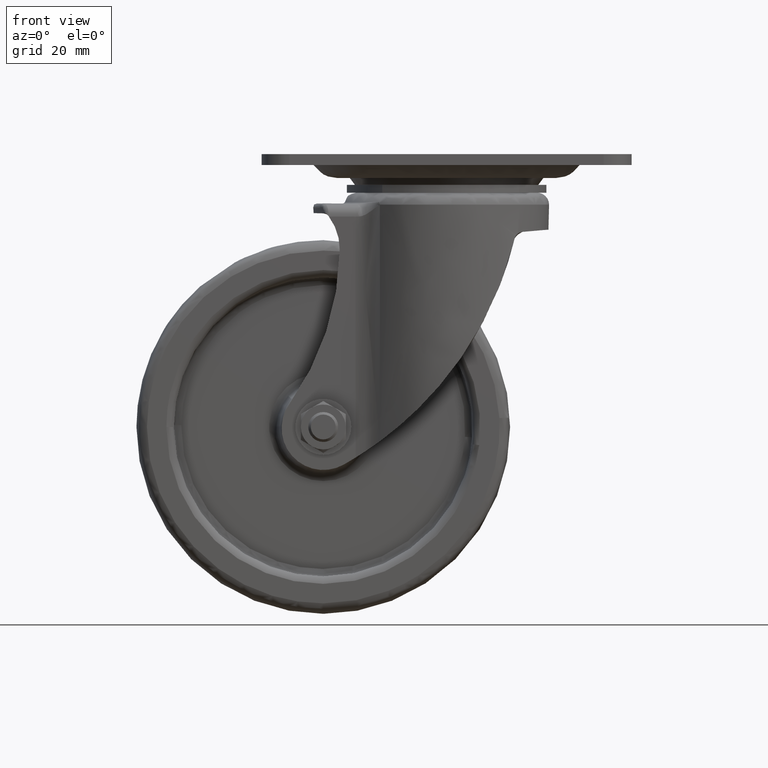
[diagram: clean part render]
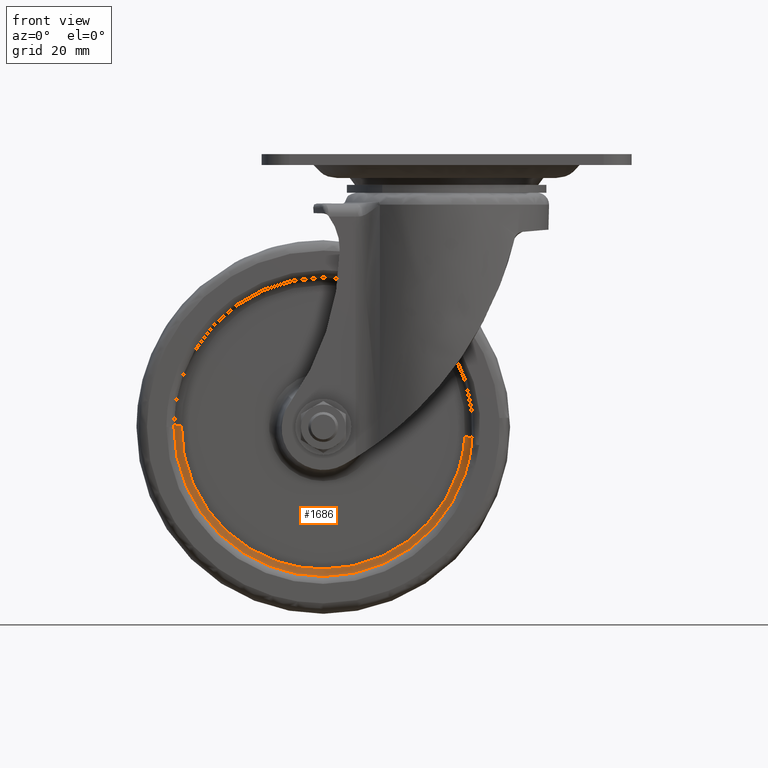
[diagram: same view with one face highlighted and labeled with its STEP entity id]
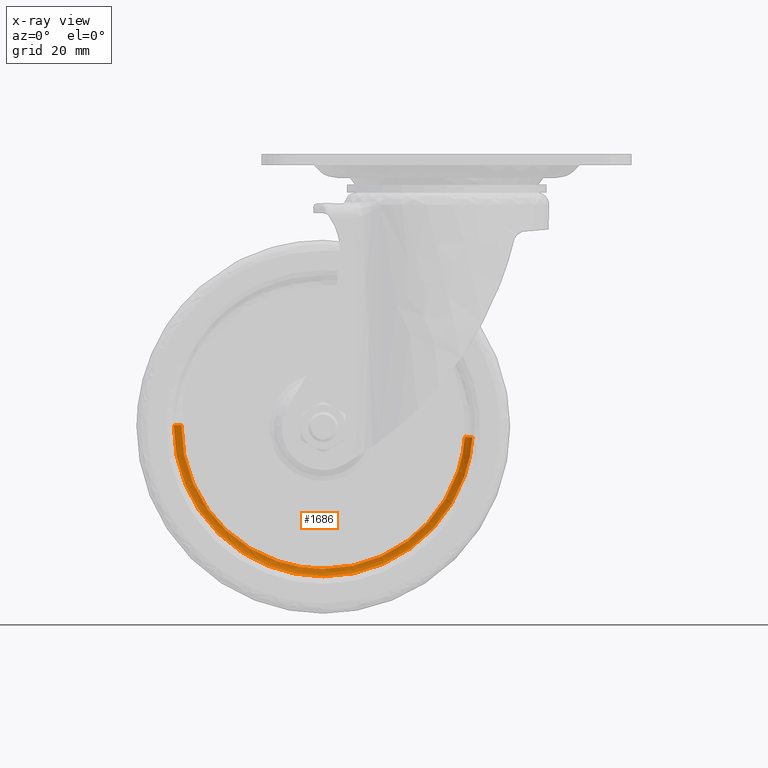
[diagram: x-ray of the same camera — body ghosted, the highlighted face saturated]
A machine part, front view. The second image highlights one B-rep face of the part: STEP entity #1686.
The next image is the same camera in x-ray: the body ghosted, the highlighted face saturated — about 0% of this face is hidden behind the body in this view.
In plain terms, the highlighted face is a freeform B-spline surface patch.
Its self-contained STEP definition (entity closure, byte-faithful):
#170=CARTESIAN_POINT('',(6.903039953612751,-6.999999998646823,-75.789124063081317));
#171=VERTEX_POINT('',#170);
#183=CARTESIAN_POINT('',(-32.999587000000091,-7.0,-112.999793999999990));
#184=VERTEX_POINT('',#183);
#185=CARTESIAN_POINT('',(-32.999587000000091,-7.0,-112.999793999999990));
#186=CARTESIAN_POINT('',(-29.637844998667951,-7.000000000000046,-113.000822514775900));
#187=CARTESIAN_POINT('',(-24.165996505247801,-6.999999999974757,-112.305545042309300));
#188=CARTESIAN_POINT('',(-16.453386298224800,-6.999999999878283,-109.652828651835190));
#189=CARTESIAN_POINT('',(-9.871057317697845,-6.999999999744381,-105.970409552997200));
#190=CARTESIAN_POINT('',(-4.458805366803701,-6.999999999574330,-101.295534969254400));
#191=CARTESIAN_POINT('',(-0.613313606935231,-6.999999999405387,-96.648018246850341));
#192=CARTESIAN_POINT('',(1.915052068829843,-6.999999999261332,-92.687540640267201));
#193=CARTESIAN_POINT('',(3.917674281146802,-6.999999999113140,-88.612394756580926));
#194=CARTESIAN_POINT('',(5.906198075506705,-6.999999998912176,-83.085841618470241));
#195=CARTESIAN_POINT('',(6.701889006704558,-6.999999998751753,-78.674727967112517));
#196=CARTESIAN_POINT('',(6.903039953612751,-6.999999998646823,-75.789124063081317));
#197=B_SPLINE_CURVE_WITH_KNOTS('',3,(#185,#186,#187,#188,#189,#190,#191,#192,#193,#194,#195,#196),.UNSPECIFIED.,.F.,.U.,(4,1,1,1,1,1,1,1,1,4),(0.000000150106935,10.084876597559610,16.417284987029682,24.391454580585702,32.599992084366058,37.759713308267457,42.450395213268720,46.671993708223560,51.362681242548170,60.040343425258087),.UNSPECIFIED.);
#198=EDGE_CURVE('',#184,#171,#197,.T.);
#200=CARTESIAN_POINT('',(-72.996428768152128,-6.999999998654348,-72.497152404618475));
#201=VERTEX_POINT('',#200);
#202=CARTESIAN_POINT('',(-72.996428768152128,-6.999999998654348,-72.497152404618475));
#203=CARTESIAN_POINT('',(-73.029976759227822,-6.999999998803219,-75.135895078196285));
#204=CARTESIAN_POINT('',(-72.664585948579003,-6.999999999031097,-79.346437937305851));
#205=CARTESIAN_POINT('',(-70.947887571022861,-6.999999999378212,-86.240402541668956));
#206=CARTESIAN_POINT('',(-68.295957111485805,-6.999999999658029,-92.323510997291265));
#207=CARTESIAN_POINT('',(-64.606437895432421,-6.999999999875412,-97.718596372177174));
#208=CARTESIAN_POINT('',(-61.113864610213710,-7.000000000010727,-101.575758349774700));
#209=CARTESIAN_POINT('',(-57.265241522764711,-7.000000000111266,-104.955168780755600));
#210=CARTESIAN_POINT('',(-52.712381994778269,-7.000000000174852,-107.967359062451490));
#211=CARTESIAN_POINT('',(-47.400450224289919,-7.000000000191508,-110.462445728878000));
#212=CARTESIAN_POINT('',(-40.916178694456327,-7.000000000152763,-112.446312346841590));
#213=CARTESIAN_POINT('',(-35.968431794094712,-7.000000000068459,-113.000332614743700));
#214=CARTESIAN_POINT('',(-32.999587000000091,-7.0,-112.999793999999990));
#215=B_SPLINE_CURVE_WITH_KNOTS('',3,(#202,#203,#204,#205,#206,#207,#208,#209,#210,#211,#212,#213,#214),.UNSPECIFIED.,.F.,.U.,(4,1,1,1,1,1,1,1,1,1,4),(0.000000167739209,7.916776845738333,12.617435566406201,21.276492965204209,27.708966413217279,32.162047183503233,36.862683051836143,43.047713822997721,48.490562444631308,54.428207781991183,63.334608845876083),.UNSPECIFIED.);
#216=EDGE_CURVE('',#201,#184,#215,.T.);
#1558=CARTESIAN_POINT('',(4.907908623832196,-5.000000000000001,-75.649657561604528));
#1559=VERTEX_POINT('',#1558);
#1579=CARTESIAN_POINT('',(4.907908623832196,-5.000000000000001,-75.649657561604528));
#1580=CARTESIAN_POINT('',(5.185462751002584,-4.999648313686596,-75.669059544066229));
#1581=CARTESIAN_POINT('',(5.723718986579237,-5.114488148839136,-75.706685495263599));
#1582=CARTESIAN_POINT('',(6.390647307250423,-5.584876551944788,-75.753306065157375));
#1583=CARTESIAN_POINT('',(6.808750624362530,-6.247388062636768,-75.782532916562275));
#1584=CARTESIAN_POINT('',(6.903233068452067,-6.754545023404780,-75.789137562461036));
#1585=CARTESIAN_POINT('',(6.903039953612751,-6.999999998646823,-75.789124063081317));
#1586=B_SPLINE_CURVE_WITH_KNOTS('',3,(#1579,#1580,#1581,#1582,#1583,#1584,#1585),.UNSPECIFIED.,.F.,.U.,(4,1,1,1,4),(0.000000633137514,0.834509909695350,1.619829739553427,2.405343562906502,3.141671481917281),.UNSPECIFIED.);
#1587=EDGE_CURVE('',#1559,#171,#1586,.T.);
#1593=CARTESIAN_POINT('',(-70.996586693972660,-5.0,-72.522284483843066));
#1594=VERTEX_POINT('',#1593);
#1595=CARTESIAN_POINT('',(-70.996586693972660,-5.0,-72.522284483843066));
#1596=CARTESIAN_POINT('',(-71.340396789513562,-4.999108391867333,-72.517963811398602));
#1597=CARTESIAN_POINT('',(-71.879286291797030,-5.142773686596469,-72.511191569820014));
#1598=CARTESIAN_POINT('',(-72.492186643420155,-5.621119534242287,-72.503489231527041));
#1599=CARTESIAN_POINT('',(-72.888841437157296,-6.214828785561914,-72.498504458059799));
#1600=CARTESIAN_POINT('',(-72.996788426326546,-6.721771624296907,-72.497147884789356));
#1601=CARTESIAN_POINT('',(-72.996428768152128,-6.999999998654348,-72.497152404618475));
#1602=B_SPLINE_CURVE_WITH_KNOTS('',3,(#1595,#1596,#1597,#1598,#1599,#1600,#1601),.UNSPECIFIED.,.F.,.U.,(4,1,1,1,4),(0.000000633139220,1.030869583943434,1.619829740257464,2.307164076122060,3.141671483269469),.UNSPECIFIED.);
#1603=EDGE_CURVE('',#1594,#201,#1602,.T.);
#1623=CARTESIAN_POINT('',(-70.857520371161911,-5.004841483106208,-72.524032135199874));
#1624=CARTESIAN_POINT('',(-71.333282235962031,-5.004841483106206,-110.381965506361680));
#1625=CARTESIAN_POINT('',(-33.475348864800218,-5.004841483106208,-110.857727371161800));
#1626=CARTESIAN_POINT('',(2.275920741790824,-5.004841483106207,-111.307014724759430));
#1627=CARTESIAN_POINT('',(4.769169875879143,-5.004841483106208,-75.639959248246782));
#1628=CARTESIAN_POINT('',(-73.151491290363353,-4.844922134836300,-72.495203728968193));
#1629=CARTESIAN_POINT('',(-73.656081561395169,-4.844922134836300,-112.647108019331410));
#1630=CARTESIAN_POINT('',(-33.504177271031928,-4.844922134836300,-113.151698290363270));
#1631=CARTESIAN_POINT('',(4.413411664139344,-4.844922134836298,-113.628209848552630));
#1632=CARTESIAN_POINT('',(7.057737217319241,-4.844922134836299,-75.799937930706420));
#1633=CARTESIAN_POINT('',(-72.991587867278625,-7.139074420594227,-72.497213240422710));
#1634=CARTESIAN_POINT('',(-73.494168626855910,-7.139074420594228,-112.489214107701260));
#1635=CARTESIAN_POINT('',(-33.502167759577375,-7.139074420594227,-112.991794867278540));
#1636=CARTESIAN_POINT('',(4.264415827951926,-7.139074420594227,-113.466408736413270));
#1637=CARTESIAN_POINT('',(6.898210455757871,-7.139074420594226,-75.788786464603803));
#1645=(BOUNDED_SURFACE()B_SPLINE_SURFACE(2,2,((#1623,#1628,#1633),(#1624,#1629,#1634),(#1625,#1630,#1635),(#1626,#1631,#1636),(#1627,#1632,#1637)),.UNSPECIFIED.,.F.,.F.,.U.)B_SPLINE_SURFACE_WITH_KNOTS((3,2,3),(3,3),(0.0,66.266148679182407,129.881651411197510),(0.0,3.644751786009137),.UNSPECIFIED.)GEOMETRIC_REPRESENTATION_ITEM()RATIONAL_B_SPLINE_SURFACE(((0.910480433641590,0.597479238377734,0.910479837164790),(0.643806888765637,0.422481621075069,0.643806466992846),(0.910480433641590,0.597479238377734,0.910479837164790),(0.654473830560675,0.429481525767176,0.654473401799724),(0.889999905395117,0.584039421368889,0.889999322335585)))REPRESENTATION_ITEM('')SURFACE());
#1646=CARTESIAN_POINT('',(-32.999587000000091,-5.0,-110.999793999999990));
#1647=VERTEX_POINT('',#1646);
#1648=CARTESIAN_POINT('',(-32.999587000000091,-5.0,-110.999793999999990));
#1649=CARTESIAN_POINT('',(-30.697262191977391,-4.999999999999991,-111.000041386292590));
#1650=CARTESIAN_POINT('',(-26.315502292238040,-5.000000000000008,-110.600314495821000));
#1651=CARTESIAN_POINT('',(-20.919982654908178,-5.000000000000016,-109.142789627674900));
#1652=CARTESIAN_POINT('',(-16.318002757986569,-4.999999999999941,-107.235645850049590));
#1653=CARTESIAN_POINT('',(-11.567848796670450,-5.000000000000276,-104.596674345656300));
#1654=CARTESIAN_POINT('',(-6.845346885015223,-4.999999999999361,-100.822075440663990));
#1655=CARTESIAN_POINT('',(-2.839656749543089,-5.000000000001066,-96.313896158812312));
#1656=CARTESIAN_POINT('',(0.095006348195398,-4.999999999998954,-91.918466979618714));
#1657=CARTESIAN_POINT('',(2.593428492713136,-5.000000000000489,-86.758617977132090));
#1658=CARTESIAN_POINT('',(4.249253921820127,-4.999999999999839,-81.261791685845708));
#1659=CARTESIAN_POINT('',(4.788828078204517,-4.999999999999914,-77.353652546590126));
#1660=CARTESIAN_POINT('',(4.907908623832196,-5.000000000000001,-75.649657561604528));
#1661=B_SPLINE_CURVE_WITH_KNOTS('',3,(#1648,#1649,#1650,#1651,#1652,#1653,#1654,#1655,#1656,#1657,#1658,#1659,#1660),.UNSPECIFIED.,.F.,.U.,(4,1,1,1,1,1,1,1,1,1,4),(0.000000151981354,6.906933699544410,13.145548280714490,16.710465821090761,21.835019265403179,29.410331134330630,34.757722564979836,39.882254500554687,45.229623389107239,51.913854398843533,57.038326261831990),.UNSPECIFIED.);
#1662=EDGE_CURVE('',#1647,#1559,#1661,.T.);
#1663=ORIENTED_EDGE('',*,*,#1662,.F.);
#1664=CARTESIAN_POINT('',(-70.996586693972660,-5.0,-72.522284483843066));
#1665=CARTESIAN_POINT('',(-71.034716755051264,-4.999999999999991,-75.499160769974068));
#1666=CARTESIAN_POINT('',(-70.512839240627230,-5.000000000000005,-80.441374844855304));
#1667=CARTESIAN_POINT('',(-68.401270909451242,-5.000000000000009,-87.273129145468317));
#1668=CARTESIAN_POINT('',(-65.728300361919295,-4.999999999999991,-92.618557450491394));
#1669=CARTESIAN_POINT('',(-62.801747769383077,-5.000000000000021,-96.705493927084831));
#1670=CARTESIAN_POINT('',(-59.340425293394190,-4.999999999999966,-100.552347302320300));
#1671=CARTESIAN_POINT('',(-55.265920970412012,-5.000000000000058,-104.019893867265590));
#1672=CARTESIAN_POINT('',(-50.195976901136639,-4.999999999999956,-107.024409980956610));
#1673=CARTESIAN_POINT('',(-45.633217830867054,-5.000000000000031,-108.931090687791400));
#1674=CARTESIAN_POINT('',(-40.050271741969787,-4.999999999999981,-110.526549800114400));
#1675=CARTESIAN_POINT('',(-35.819995857520993,-5.000000000000005,-111.000353001115300));
#1676=CARTESIAN_POINT('',(-32.999587000000091,-5.0,-110.999793999999990));
#1677=B_SPLINE_CURVE_WITH_KNOTS('',3,(#1664,#1665,#1666,#1667,#1668,#1669,#1670,#1671,#1672,#1673,#1674,#1675,#1676),.UNSPECIFIED.,.F.,.U.,(4,1,1,1,1,1,1,1,1,1,4),(0.000000173738016,8.931147022334237,14.806940160260829,21.387830341550849,26.793539709029812,29.849011561386600,36.899768435958833,42.775582924325121,47.476234785866431,51.706820102593767,60.167878407867207),.UNSPECIFIED.);
#1678=EDGE_CURVE('',#1594,#1647,#1677,.T.);
#1679=ORIENTED_EDGE('',*,*,#1678,.F.);
#1680=ORIENTED_EDGE('',*,*,#1603,.T.);
#1681=ORIENTED_EDGE('',*,*,#216,.T.);
#1682=ORIENTED_EDGE('',*,*,#198,.T.);
#1683=ORIENTED_EDGE('',*,*,#1587,.F.);
#1684=EDGE_LOOP('',(#1663,#1679,#1680,#1681,#1682,#1683));
#1685=FACE_OUTER_BOUND('',#1684,.T.);
#1686=ADVANCED_FACE('',(#1685),#1645,.F.);